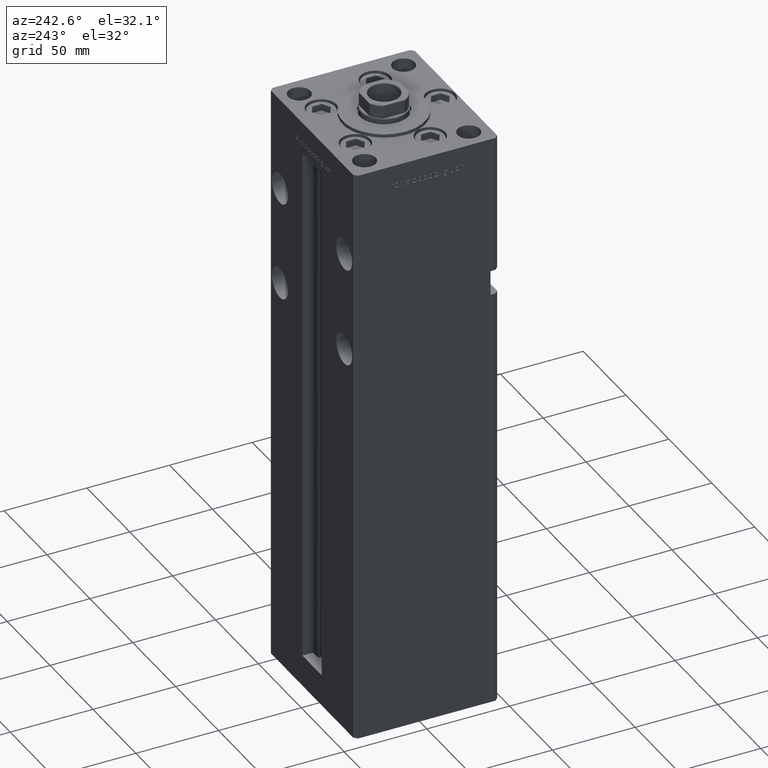
[diagram: clean part render]
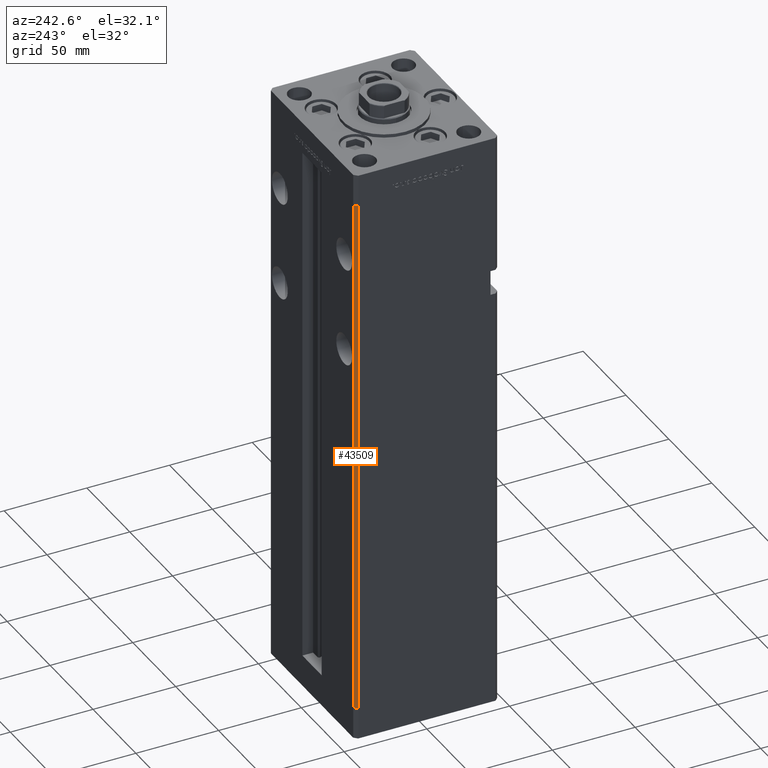
[diagram: same view with one face highlighted and labeled with its STEP entity id]
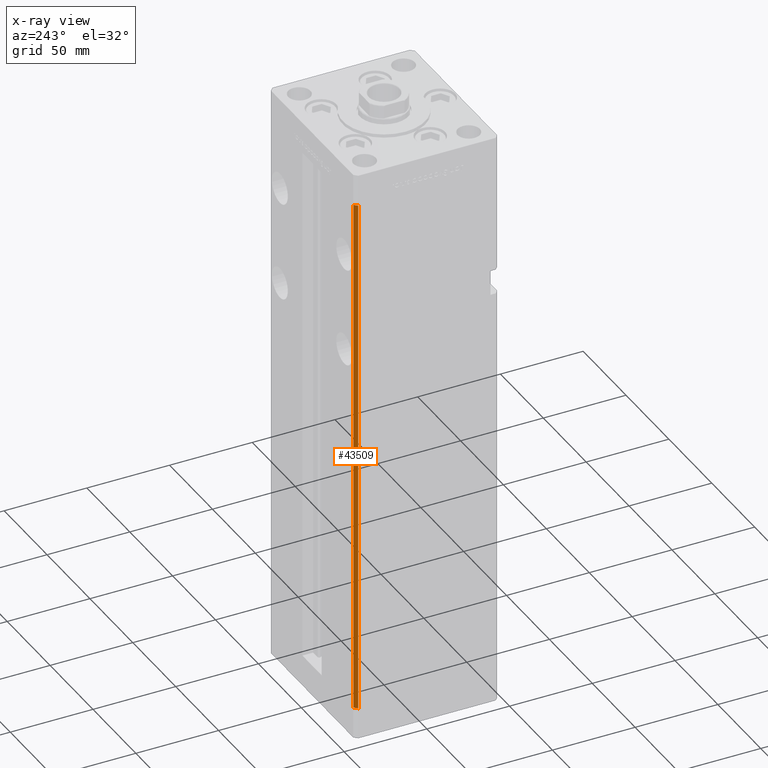
[diagram: x-ray of the same camera — body ghosted, the highlighted face saturated]
A machine part, auxiliary view. The second image highlights one B-rep face of the part: STEP entity #43509.
The next image is the same camera in x-ray: the body ghosted, the highlighted face saturated — about 0% of this face is hidden behind the body in this view.
In plain terms, the highlighted planar face has unit normal (0.7071, -0.7071, 0).
Its self-contained STEP definition (entity closure, byte-faithful):
#1976 = ORIENTED_EDGE ( 'NONE', *, *, #14291, .F. ) ;
#2839 = VERTEX_POINT ( 'NONE', #6191 ) ;
#3456 = LINE ( 'NONE', #8291, #23340 ) ;
#3768 = DIRECTION ( 'NONE',  ( 0.7071067811865463515, -0.7071067811865487940, 0.000000000000000000 ) ) ;
#4199 = EDGE_CURVE ( 'NONE', #28975, #38754, #21642, .T. ) ;
#6191 = CARTESIAN_POINT ( 'NONE',  ( -50.00000000000001421, 41.49999999999999289, 318.5000000000000000 ) ) ;
#6207 = CARTESIAN_POINT ( 'NONE',  ( -48.00000000000000711, 43.50000000000000000, 318.5000000000000000 ) ) ;
#8291 = CARTESIAN_POINT ( 'NONE',  ( -48.00000000000000711, 43.50000000000000000, 318.5000000000000000 ) ) ;
#10930 = LINE ( 'NONE', #39398, #31059 ) ;
#11154 = VECTOR ( 'NONE', #38301, 1000.000000000000000 ) ;
#11457 = EDGE_CURVE ( 'NONE', #38754, #48671, #10930, .T. ) ;
#11844 = FACE_OUTER_BOUND ( 'NONE', #38931, .T. ) ;
#11865 = CARTESIAN_POINT ( 'NONE',  ( -50.00000000000001421, 41.49999999999999289, 318.5000000000000000 ) ) ;
#14291 = EDGE_CURVE ( 'NONE', #2839, #48671, #48667, .T. ) ;
#15303 = EDGE_CURVE ( 'NONE', #28975, #2839, #3456, .T. ) ;
#21143 = CARTESIAN_POINT ( 'NONE',  ( -48.00000000000000711, 43.50000000000000000, 0.000000000000000000 ) ) ;
#21642 = LINE ( 'NONE', #47151, #11154 ) ;
#22404 = VECTOR ( 'NONE', #28248, 1000.000000000000000 ) ;
#22557 = ORIENTED_EDGE ( 'NONE', *, *, #4199, .T. ) ;
#22749 = DIRECTION ( 'NONE',  ( -0.7071067811865487940, -0.7071067811865463515, 0.000000000000000000 ) ) ;
#23340 = VECTOR ( 'NONE', #48614, 1000.000000000000000 ) ;
#24199 = CARTESIAN_POINT ( 'NONE',  ( -48.00000000000000711, 43.50000000000000000, 318.5000000000000000 ) ) ;
#28226 = PLANE ( 'NONE',  #40643 ) ;
#28248 = DIRECTION ( 'NONE',  ( -0.000000000000000000, -0.000000000000000000, -1.000000000000000000 ) ) ;
#28975 = VERTEX_POINT ( 'NONE', #6207 ) ;
#31059 = VECTOR ( 'NONE', #22749, 1000.000000000000000 ) ;
#32524 = DIRECTION ( 'NONE',  ( 0.7071067811865487940, 0.7071067811865463515, 0.000000000000000000 ) ) ;
#38301 = DIRECTION ( 'NONE',  ( -0.000000000000000000, -0.000000000000000000, -1.000000000000000000 ) ) ;
#38754 = VERTEX_POINT ( 'NONE', #21143 ) ;
#38931 = EDGE_LOOP ( 'NONE', ( #39587, #1976, #47671, #22557 ) ) ;
#39398 = CARTESIAN_POINT ( 'NONE',  ( -48.00000000000000711, 43.50000000000000000, 0.000000000000000000 ) ) ;
#39587 = ORIENTED_EDGE ( 'NONE', *, *, #11457, .T. ) ;
#40643 = AXIS2_PLACEMENT_3D ( 'NONE', #24199, #3768, #32524 ) ;
#43509 = ADVANCED_FACE ( 'NONE', ( #11844 ), #28226, .F. ) ;
#47151 = CARTESIAN_POINT ( 'NONE',  ( -48.00000000000000711, 43.50000000000000000, 318.5000000000000000 ) ) ;
#47671 = ORIENTED_EDGE ( 'NONE', *, *, #15303, .F. ) ;
#48006 = CARTESIAN_POINT ( 'NONE',  ( -50.00000000000001421, 41.49999999999999289, 0.000000000000000000 ) ) ;
#48614 = DIRECTION ( 'NONE',  ( -0.7071067811865487940, -0.7071067811865463515, 0.000000000000000000 ) ) ;
#48667 = LINE ( 'NONE', #11865, #22404 ) ;
#48671 = VERTEX_POINT ( 'NONE', #48006 ) ;